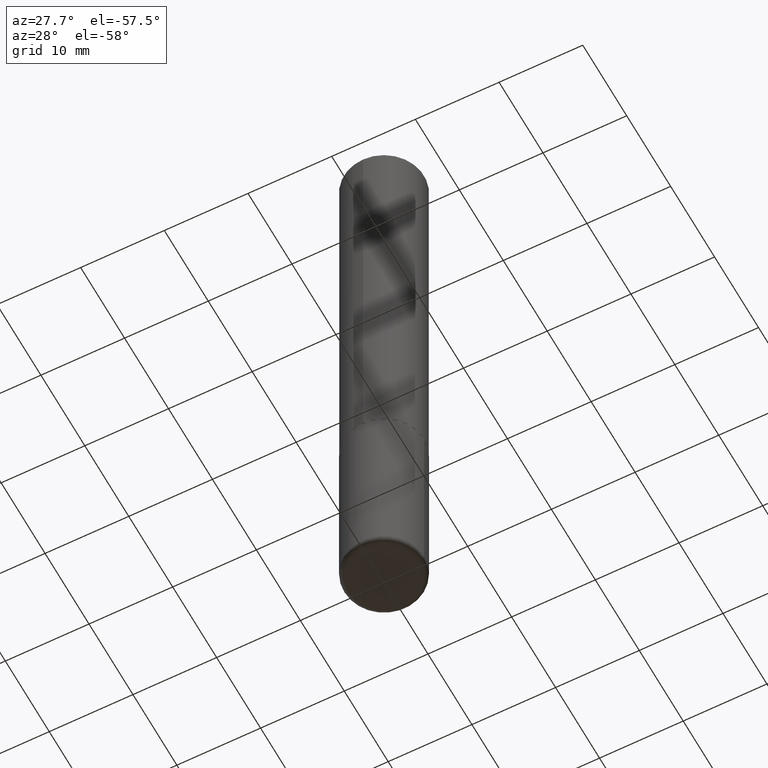
[diagram: clean part render]
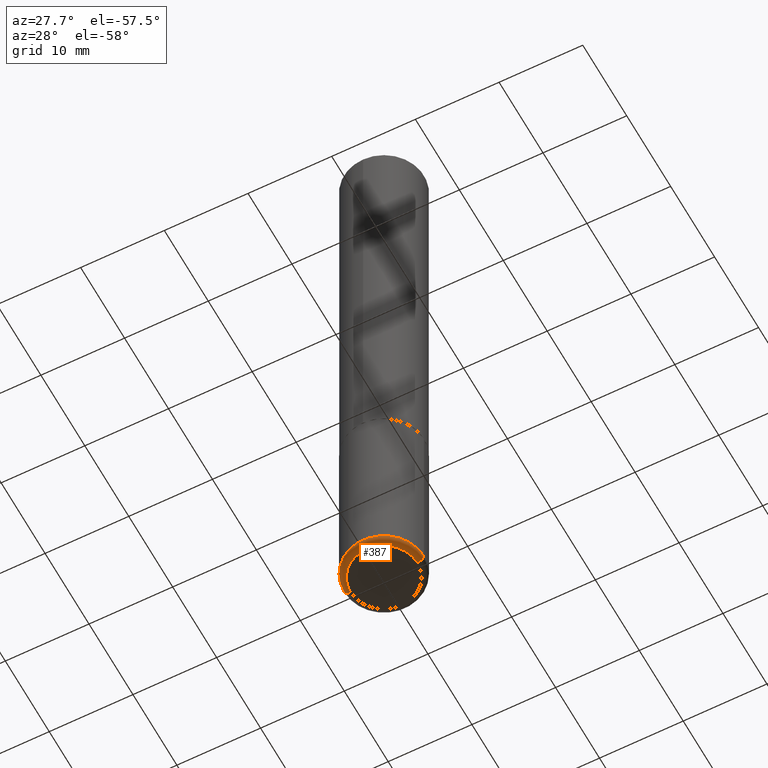
[diagram: same view with one face highlighted and labeled with its STEP entity id]
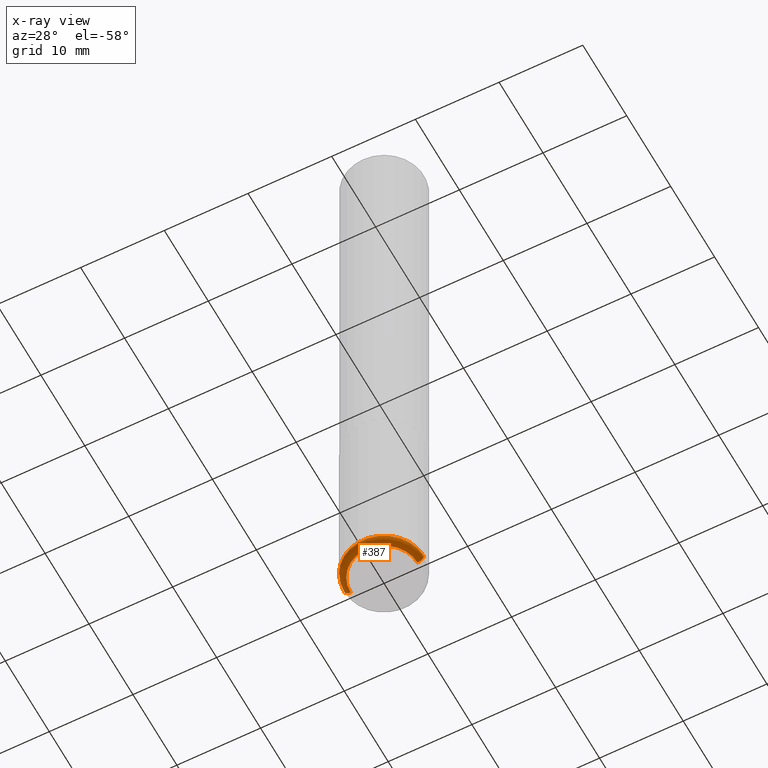
[diagram: x-ray of the same camera — body ghosted, the highlighted face saturated]
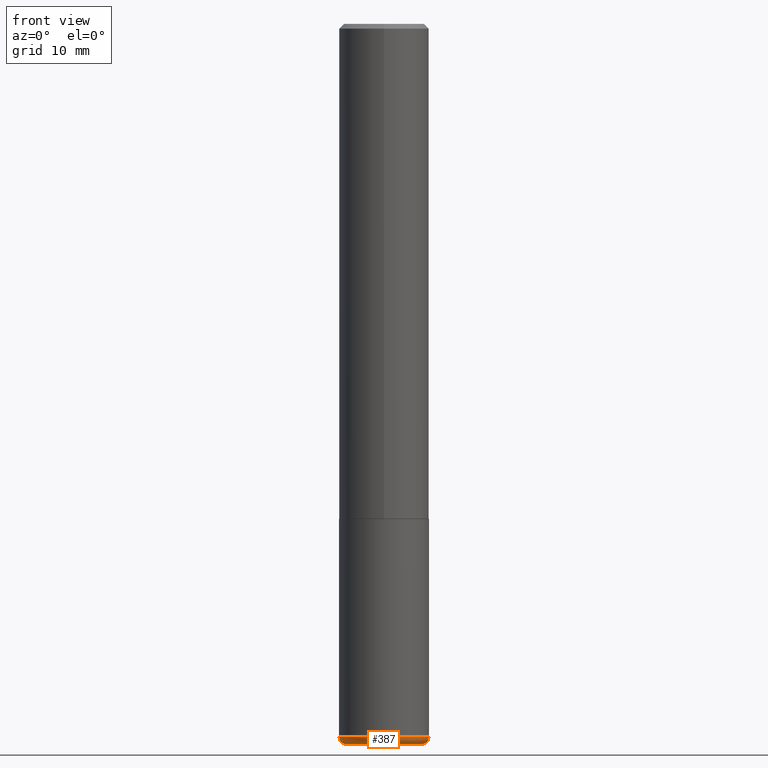
[diagram: same view with one face highlighted and labeled with its STEP entity id]
A machine part, auxiliary view. The second image highlights one B-rep face of the part: STEP entity #387.
The next image is the same camera in x-ray: the body ghosted, the highlighted face saturated — about 0% of this face is hidden behind the body in this view.
A second angle (front view) of the same face is appended — the face is thin or edge-on in the first view.
In plain terms, the highlighted toroidal blend (fillet) surface has major radius 4.0005 mm and minor (blend) radius 0.762 mm.
Its self-contained STEP definition (entity closure, byte-faithful):
#28 = DIRECTION ( 'NONE',  ( -2.445468806185136597E-29, 3.491481338843145583E-15, 1.000000000000000000 ) ) ;
#38 = CARTESIAN_POINT ( 'NONE',  ( -0.1874999999999998335, -9.037431946813958291E-15, -2.970000000000000195 ) ) ;
#46 = ORIENTED_EDGE ( 'NONE', *, *, #264, .F. ) ;
#48 = DIRECTION ( 'NONE',  ( 1.000000000000000000, -6.982962677686277755E-15, 0.000000000000000000 ) ) ;
#58 = AXIS2_PLACEMENT_3D ( 'NONE', #382, #95, #125 ) ;
#71 = CIRCLE ( 'NONE', #301, 0.02999999999999967970 ) ;
#90 = ORIENTED_EDGE ( 'NONE', *, *, #371, .T. ) ;
#95 = DIRECTION ( 'NONE',  ( -2.445468806185136597E-29, 3.491481338843145583E-15, 1.000000000000000000 ) ) ;
#104 = DIRECTION ( 'NONE',  ( 1.000000000000000000, -6.982962677686273810E-15, 0.000000000000000000 ) ) ;
#109 = CARTESIAN_POINT ( 'NONE',  ( -0.1575000000000000289, -9.196385577260617732E-15, -2.999999999999999556 ) ) ;
#125 = DIRECTION ( 'NONE',  ( 1.000000000000000000, -6.982962677686261189E-15, 0.000000000000000000 ) ) ;
#132 = CARTESIAN_POINT ( 'NONE',  ( 7.336406418555408669E-29, -1.047444401652943478E-14, -2.999999999999999556 ) ) ;
#133 = CARTESIAN_POINT ( 'NONE',  ( 0.1874999999999998335, -1.167900507843031957E-14, -2.970000000000000195 ) ) ;
#141 = AXIS2_PLACEMENT_3D ( 'NONE', #132, #28, #104 ) ;
#144 = CIRCLE ( 'NONE', #287, 0.02999999999999967970 ) ;
#145 = EDGE_LOOP ( 'NONE', ( #46, #210, #90, #376 ) ) ;
#168 = EDGE_CURVE ( 'NONE', #229, #332, #395, .T. ) ;
#196 = CIRCLE ( 'NONE', #58, 0.1875000000000000278 ) ;
#210 = ORIENTED_EDGE ( 'NONE', *, *, #168, .T. ) ;
#211 = VERTEX_POINT ( 'NONE', #38 ) ;
#229 = VERTEX_POINT ( 'NONE', #109 ) ;
#240 = DIRECTION ( 'NONE',  ( 7.105427357601001859E-15, 1.000000000000000000, -3.491481338843145583E-15 ) ) ;
#248 = EDGE_CURVE ( 'NONE', #211, #290, #196, .T. ) ;
#255 = CARTESIAN_POINT ( 'NONE',  ( -0.1575000000000000289, -9.250594767541985380E-15, -2.970000000000000195 ) ) ;
#263 = DIRECTION ( 'NONE',  ( -2.445468806185136597E-29, 3.491481338843145583E-15, 1.000000000000000000 ) ) ;
#264 = EDGE_CURVE ( 'NONE', #229, #211, #71, .T. ) ;
#273 = TOROIDAL_SURFACE ( 'NONE', #414, 0.1575000000000000289, 0.02999999999999969705 ) ;
#287 = AXIS2_PLACEMENT_3D ( 'NONE', #393, #328, #48 ) ;
#290 = VERTEX_POINT ( 'NONE', #133 ) ;
#297 = FACE_OUTER_BOUND ( 'NONE', #145, .T. ) ;
#301 = AXIS2_PLACEMENT_3D ( 'NONE', #255, #240, #374 ) ;
#327 = CARTESIAN_POINT ( 'NONE',  ( 7.263042354369856275E-29, -1.036969957636414298E-14, -2.970000000000000195 ) ) ;
#328 = DIRECTION ( 'NONE',  ( -6.982962677686266711E-15, -1.000000000000000000, 3.491481338843145583E-15 ) ) ;
#332 = VERTEX_POINT ( 'NONE', #364 ) ;
#364 = CARTESIAN_POINT ( 'NONE',  ( 0.1575000000000000289, -1.157426063826502304E-14, -2.999999999999999556 ) ) ;
#371 = EDGE_CURVE ( 'NONE', #332, #290, #144, .T. ) ;
#374 = DIRECTION ( 'NONE',  ( -1.000000000000000000, 7.105427357601001859E-15, 0.000000000000000000 ) ) ;
#376 = ORIENTED_EDGE ( 'NONE', *, *, #248, .F. ) ;
#382 = CARTESIAN_POINT ( 'NONE',  ( 7.263042354369856275E-29, -1.036969957636414298E-14, -2.970000000000000195 ) ) ;
#387 = ADVANCED_FACE ( 'NONE', ( #297 ), #273, .T. ) ;
#393 = CARTESIAN_POINT ( 'NONE',  ( 0.1575000000000000289, -1.146951619809973125E-14, -2.970000000000000195 ) ) ;
#395 = CIRCLE ( 'NONE', #141, 0.1575000000000000289 ) ;
#407 = DIRECTION ( 'NONE',  ( 1.000000000000000000, -6.982962677686263555E-15, 4.883557194083111219E-29 ) ) ;
#414 = AXIS2_PLACEMENT_3D ( 'NONE', #327, #263, #407 ) ;